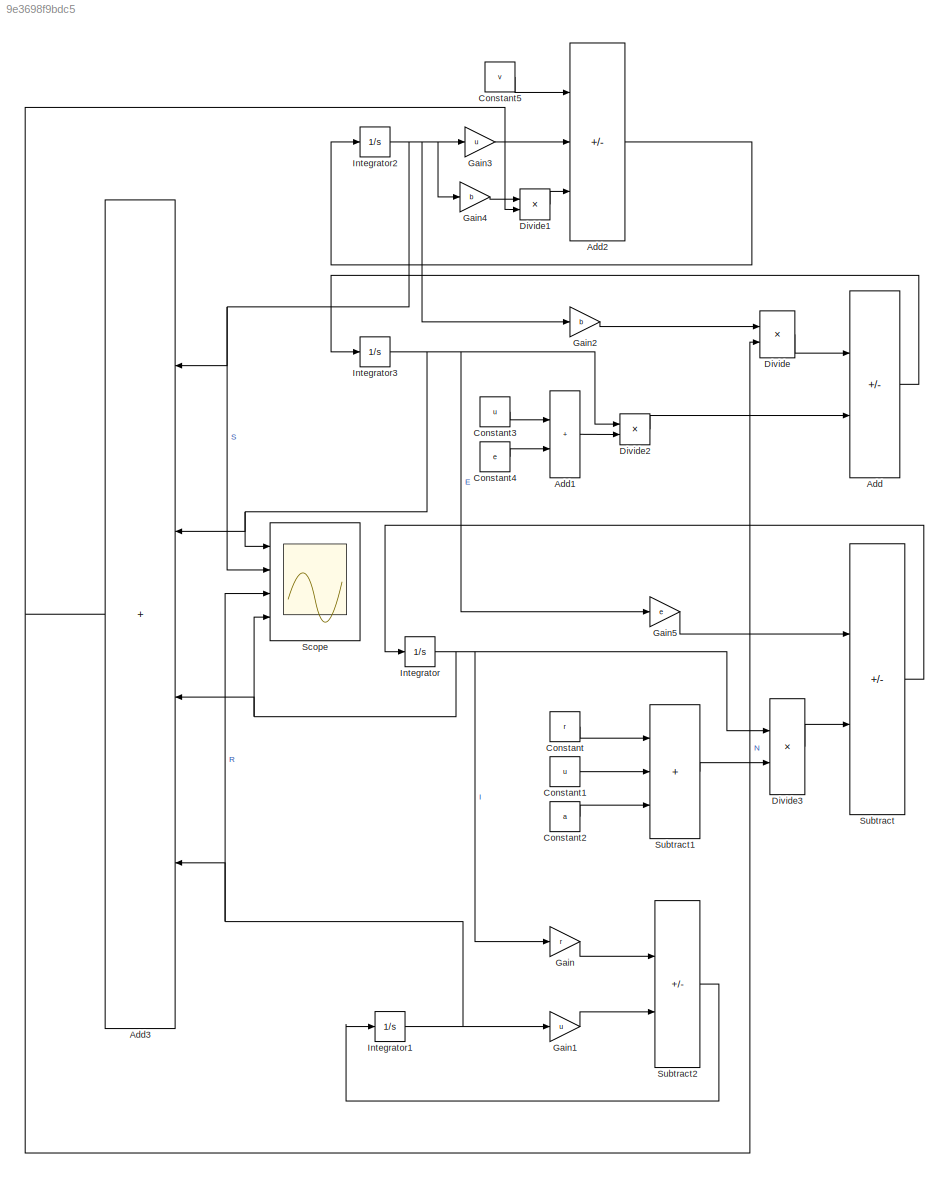
MODEL slx_9e3698f9bdc5
KIND model
CONFIG AbsTol = auto
CONFIG EnableMultiTasking = off
CONFIG FixedStep = auto
CONFIG InitFcn = r=1/8;\nu=0;\na=0.006;\nb=0.1;\nv=0;\ne=1/3;
CONFIG MaxStep = auto
CONFIG MinStep = auto
CONFIG RelTol = 1e-3
CONFIG SampleTimeConstraint = Unconstrained
CONFIG SolverName = VariableStepAuto
CONFIG StartTime = 0.0
CONFIG StopTime = 1000
BLOCK [Sum] Add
  IconShape = rectangular
  Inputs = +-
  Ports = [2, 1]
BLOCK [Sum] Add1
  IconShape = rectangular
  Ports = [2, 1]
BLOCK [Sum] Add2
  IconShape = rectangular
  Inputs = +--
  Ports = [3, 1]
BLOCK [Sum] Add3
  IconShape = rectangular
  Inputs = ++++
  Ports = [4, 1]
BLOCK [Constant] Constant
  Value = r
BLOCK [Constant] Constant1
  Value = u
BLOCK [Constant] Constant2
  Value = a
BLOCK [Constant] Constant3
  Value = u
BLOCK [Constant] Constant4
  Value = e
BLOCK [Constant] Constant5
  Value = v
BLOCK [Product] Divide
  Inputs = */
  Ports = [2, 1]
BLOCK [Product] Divide1
  Inputs = */
  Ports = [2, 1]
BLOCK [Product] Divide2
  Inputs = **
  Ports = [2, 1]
BLOCK [Product] Divide3
  Inputs = **
  Ports = [2, 1]
BLOCK [Gain] Gain
  Gain = r
BLOCK [Gain] Gain1
  Gain = u
BLOCK [Gain] Gain2
  Gain = b
BLOCK [Gain] Gain3
  Gain = u
BLOCK [Gain] Gain4
  Gain = b
BLOCK [Gain] Gain5
  Gain = e
BLOCK [Integrator] Integrator
  Ports = [1, 1]
BLOCK [Integrator] Integrator1
  Ports = [1, 1]
BLOCK [Integrator] Integrator2
  InitialCondition = 10
  Ports = [1, 1]
BLOCK [Integrator] Integrator3
  Ports = [1, 1]
BLOCK [Scope] Scope
  Floating = off
  NumInputPorts = 4
  Ports = [4]
  ScopeSpecificationString = Simulink.scopes.TimeScopeBlockCfg('CurrentConfiguration', extmgr.ConfigurationSet(extmgr.Configuration('Core','General UI',true),extmgr.Configuration('Core','Source UI',true),extmgr.Configuration('Sources','WiredSimulink',true),extmgr.Configuration('Visuals','Time Domain',true,'SerializedDisplays',{struct('MinYLimReal','-0.5','MaxYLimReal','10','YLabelReal','','MinYLimMag','0.00000','MaxYLimMag','...<+1381ch>
BLOCK [Sum] Subtract
  IconShape = rectangular
  Inputs = +-
  Ports = [2, 1]
BLOCK [Sum] Subtract1
  IconShape = rectangular
  Inputs = +++
  Ports = [3, 1]
BLOCK [Sum] Subtract2
  IconShape = rectangular
  Inputs = +-
  Ports = [2, 1]
LINE Add1:1 -> Divide2:2
LINE Add2:1 -> Integrator2:1
NET Add3:1 -> Divide1:2, Divide:2
LINE Add:1 -> Integrator3:1
LINE Constant1:1 -> Subtract1:2
LINE Constant2:1 -> Subtract1:3
LINE Constant3:1 -> Add1:1
LINE Constant4:1 -> Add1:2
LINE Constant5:1 -> Add2:1
LINE Constant:1 -> Subtract1:1
LINE Divide1:1 -> Add2:3
LINE Divide2:1 -> Add:2
LINE Divide3:1 -> Subtract:2
LINE Divide:1 -> Add:1
LINE Gain1:1 -> Subtract2:2
LINE Gain2:1 -> Divide:1
LINE Gain3:1 -> Add2:2
LINE Gain4:1 -> Divide1:1
LINE Gain5:1 -> Subtract:1
LINE Gain:1 -> Subtract2:1
NET Integrator1:1 -> Add3:4, Gain1:1, Scope:3
NET Integrator2:1 -> Add3:1, Gain2:1, Gain3:1, Gain4:1, Scope:2
NET Integrator3:1 -> Add3:2, Divide2:1, Gain5:1, Scope:1
NET Integrator:1 -> Add3:3, Divide3:1, Gain:1, Scope:4
LINE Subtract1:1 -> Divide3:2
LINE Subtract2:1 -> Integrator1:1
LINE Subtract:1 -> Integrator:1
note: NET lines group one-source signal fan-out (src -> all destinations, sorted); 1:1 wires keep LINE
